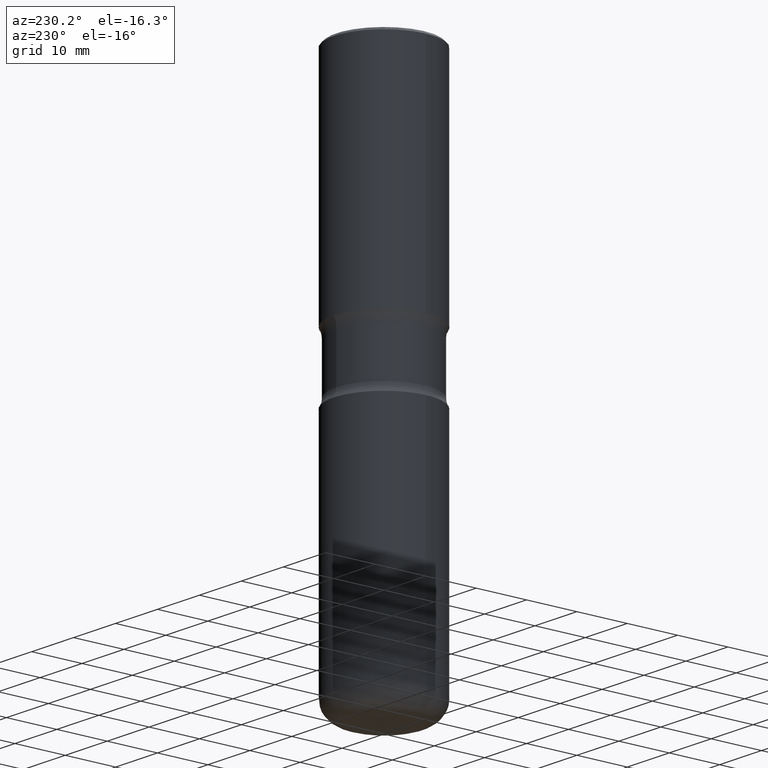
[diagram: clean part render]
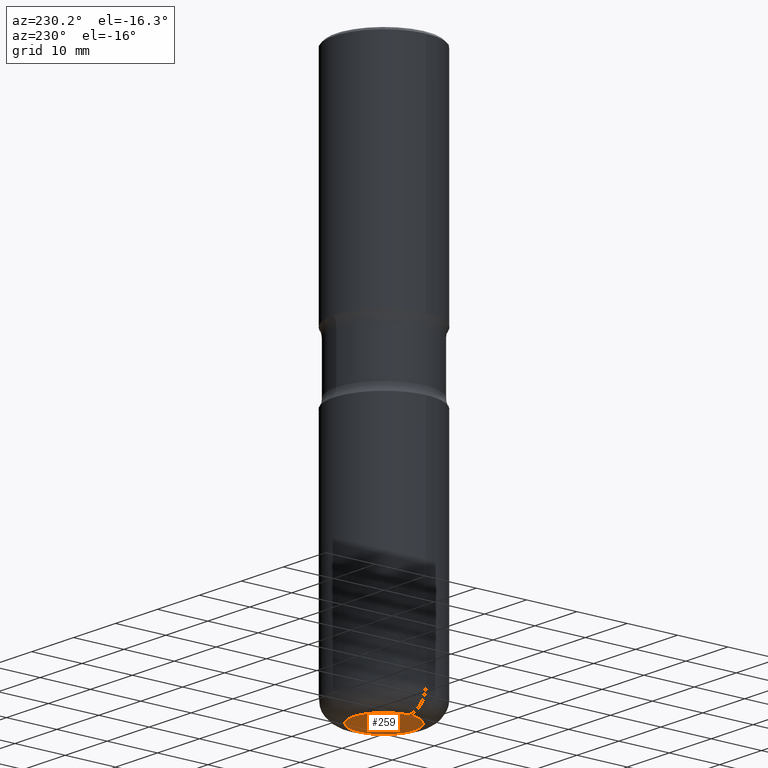
[diagram: same view with one face highlighted and labeled with its STEP entity id]
A machine part, auxiliary view. The second image highlights one B-rep face of the part: STEP entity #259.
In plain terms, the highlighted planar face has unit normal (0, -0, -1).
Its self-contained STEP definition (entity closure, byte-faithful):
#5 = CIRCLE ( 'NONE', #458, 0.2357000000000006312 ) ;
#13 = ORIENTED_EDGE ( 'NONE', *, *, #537, .F. ) ;
#37 = CIRCLE ( 'NONE', #333, 0.2357000000000006312 ) ;
#51 = CARTESIAN_POINT ( 'NONE',  ( 2.416356760299254874E-28, 4.867106657481481222E-15, -4.252000000000000668 ) ) ;
#54 = FACE_OUTER_BOUND ( 'NONE', #331, .T. ) ;
#100 = PLANE ( 'NONE',  #339 ) ;
#131 = CARTESIAN_POINT ( 'NONE',  ( -0.2357000000000006312, -1.233387363755540793E-14, -4.251999999999999780 ) ) ;
#142 = CARTESIAN_POINT ( 'NONE',  ( 0.2357000000000006312, -1.649166295589171151E-14, -4.251999999999999780 ) ) ;
#161 = DIRECTION ( 'NONE',  ( 1.000000000000000000, -6.982962677686264344E-15, 0.000000000000000000 ) ) ;
#190 = ORIENTED_EDGE ( 'NONE', *, *, #311, .F. ) ;
#238 = VERTEX_POINT ( 'NONE', #131 ) ;
#259 = ADVANCED_FACE ( 'NONE', ( #54 ), #100, .T. ) ;
#311 = EDGE_CURVE ( 'NONE', #238, #312, #5, .T. ) ;
#312 = VERTEX_POINT ( 'NONE', #142 ) ;
#331 = EDGE_LOOP ( 'NONE', ( #13, #190 ) ) ;
#333 = AXIS2_PLACEMENT_3D ( 'NONE', #501, #453, #161 ) ;
#339 = AXIS2_PLACEMENT_3D ( 'NONE', #51, #354, #442 ) ;
#354 = DIRECTION ( 'NONE',  ( 2.438088387897960049E-29, -3.491481338843145188E-15, -1.000000000000000000 ) ) ;
#396 = DIRECTION ( 'NONE',  ( -2.445468806185136597E-29, 3.491481338843145583E-15, 1.000000000000000000 ) ) ;
#437 = CARTESIAN_POINT ( 'NONE',  ( 1.039813336389919950E-28, -1.484577865276105326E-14, -4.251999999999999780 ) ) ;
#442 = DIRECTION ( 'NONE',  ( -1.000000000000000000, 6.982962677686265922E-15, -4.876176775795935793E-29 ) ) ;
#453 = DIRECTION ( 'NONE',  ( -2.445468806185136597E-29, 3.491481338843145583E-15, 1.000000000000000000 ) ) ;
#458 = AXIS2_PLACEMENT_3D ( 'NONE', #437, #396, #516 ) ;
#501 = CARTESIAN_POINT ( 'NONE',  ( 1.039813336389919950E-28, -1.484577865276105326E-14, -4.251999999999999780 ) ) ;
#516 = DIRECTION ( 'NONE',  ( 1.000000000000000000, -6.982962677686264344E-15, 0.000000000000000000 ) ) ;
#537 = EDGE_CURVE ( 'NONE', #312, #238, #37, .T. ) ;